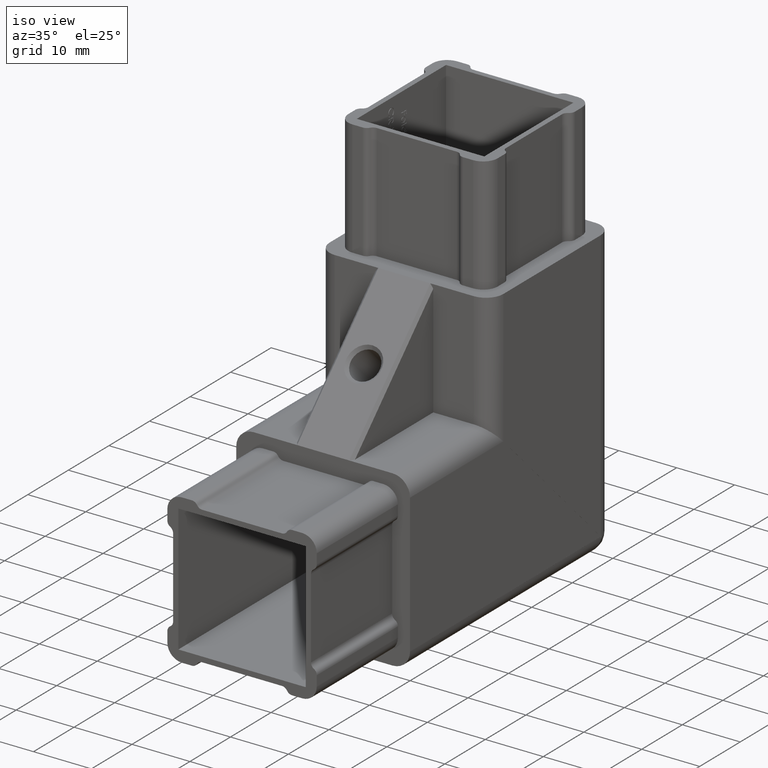
[diagram: clean part render]
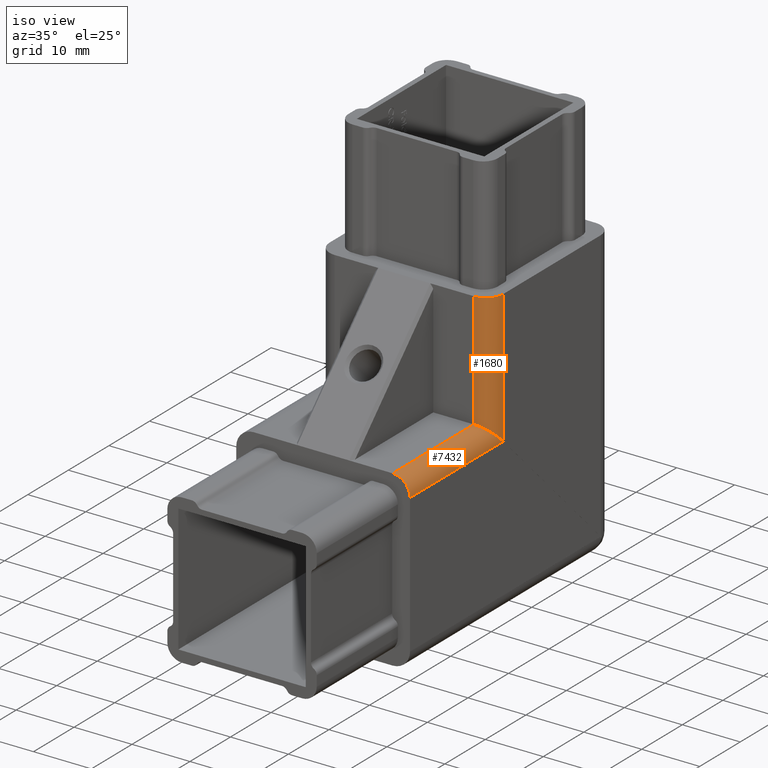
[diagram: same view with one multi-face feature highlighted, each face labeled with its STEP entity id]
A machine part, iso view. The highlighted faces form ONE feature: a constant-radius fillet chain: 2 tangent blend faces with common blend radius 3 mm. The faces share edges in the B-rep.
Their STEP definitions:
[1] entity #7432 (Cylinder):
#1920 = FACE_OUTER_BOUND ( 'NONE', #8189, .T. ) ;
#2269 = CARTESIAN_POINT ( 'NONE',  ( 27.00000000000000000, 20.00000000000000000, 30.00000000000000000 ) ) ;
#2577 = CARTESIAN_POINT ( 'NONE',  ( 27.00000000000000000, -3.673940397442059200E-015, 30.00000000000000000 ) ) ;
#2960 = ORIENTED_EDGE ( 'NONE', *, *, #11477, .F. ) ;
#3482 = VERTEX_POINT ( 'NONE', #11953 ) ;
#3545 = CARTESIAN_POINT ( 'NONE',  ( 28.64560006738315300, 20.00000000000000000, 29.99999999999999300 ) ) ;
#4037 = CARTESIAN_POINT ( 'NONE',  ( 27.00000000000000000, -3.673940397442059200E-015, 27.00000000000000000 ) ) ;
#4545 = CARTESIAN_POINT ( 'NONE',  ( 27.00000000000000000, 20.00000000000000000, 30.00000000000000000 ) ) ;
#5097 = VECTOR ( 'NONE', #14993, 1000.000000000000000 ) ;
#5337 = VERTEX_POINT ( 'NONE', #10991 ) ;
#5344 = DIRECTION ( 'NONE',  ( 0.0000000000000000000, 1.000000000000000000, 0.0000000000000000000 ) ) ;
#5791 = EDGE_CURVE ( 'NONE', #7877, #9478, #8681, .T. ) ;
#6590 = EDGE_CURVE ( 'NONE', #9478, #15626, #9050, .T. ) ;
#6801 = ORIENTED_EDGE ( 'NONE', *, *, #6852, .T. ) ;
#6852 = EDGE_CURVE ( 'NONE', #3482, #15626, #11939, .T. ) ;
#7432 = ADVANCED_FACE ( 'NONE', ( #1920 ), #12677, .T. ) ;
#7437 = VECTOR ( 'NONE', #12951, 1000.000000000000000 ) ;
#7450 = AXIS2_PLACEMENT_3D ( 'NONE', #4037, #5344, #9318 ) ;
#7492 = ORIENTED_EDGE ( 'NONE', *, *, #5791, .F. ) ;
#7705 = CARTESIAN_POINT ( 'NONE',  ( 27.00000000000000000, -3.673940397442059200E-015, 30.00000000000000000 ) ) ;
#7877 = VERTEX_POINT ( 'NONE', #8108 ) ;
#8108 = CARTESIAN_POINT ( 'NONE',  ( 30.00000000000000000, -3.306546357697853700E-015, 27.00000000000000000 ) ) ;
#8189 = EDGE_LOOP ( 'NONE', ( #2960, #9678, #6801, #13234, #7492 ) ) ;
#8224 = CARTESIAN_POINT ( 'NONE',  ( 29.99000000000002300, 22.75525523498984300, 27.24474476501015400 ) ) ;
#8306 = CARTESIAN_POINT ( 'NONE',  ( 27.00000000000000000, -3.306546357697853700E-015, 27.00000000000000000 ) ) ;
#8310 = CARTESIAN_POINT ( 'NONE',  ( 29.99999999999999600, 22.91451556301481700, 27.08169506316556500 ) ) ;
#8681 = CIRCLE ( 'NONE', #14162, 2.999999999999999100 ) ;
#9050 = LINE ( 'NONE', #7705, #7437 ) ;
#9301 =( BOUNDED_CURVE ( )  B_SPLINE_CURVE ( 3, ( #10700, #8310, #16257, #11042 ),
 .UNSPECIFIED., .F., .F. ) 
 B_SPLINE_CURVE_WITH_KNOTS ( ( 4, 4 ),
 ( 1.933014472006552100, 2.014686827587061700 ),
 .UNSPECIFIED. ) 
 CURVE ( )  GEOMETRIC_REPRESENTATION_ITEM ( )  RATIONAL_B_SPLINE_CURVE ( ( 1.000000000000000000, 0.9994442127698617300, 0.9994442127698617300, 1.000000000000000000 ) ) 
 REPRESENTATION_ITEM ( '' )  );
#9318 = DIRECTION ( 'NONE',  ( 0.0000000000000000000, 0.0000000000000000000, 1.000000000000000000 ) ) ;
#9478 = VERTEX_POINT ( 'NONE', #2577 ) ;
#9678 = ORIENTED_EDGE ( 'NONE', *, *, #16461, .T. ) ;
#10700 = CARTESIAN_POINT ( 'NONE',  ( 30.00000000000000000, 22.99621062618037800, 27.00000000000000000 ) ) ;
#10991 = CARTESIAN_POINT ( 'NONE',  ( 30.00000000000000000, 22.99621062618037800, 27.00000000000000000 ) ) ;
#11042 = CARTESIAN_POINT ( 'NONE',  ( 29.99000000000002300, 22.75525523498984300, 27.24474476501015400 ) ) ;
#11047 = CARTESIAN_POINT ( 'NONE',  ( 30.00000000000000000, 0.0000000000000000000, 27.00000000000000000 ) ) ;
#11477 = EDGE_CURVE ( 'NONE', #5337, #7877, #11973, .T. ) ;
#11939 =( BOUNDED_CURVE ( )  B_SPLINE_CURVE ( 3, ( #8224, #13473, #3545, #4545 ),
 .UNSPECIFIED., .F., .F. ) 
 B_SPLINE_CURVE_WITH_KNOTS ( ( 4, 4 ),
 ( 1.652468682375406000, 3.141592653589793100 ),
 .UNSPECIFIED. ) 
 CURVE ( )  GEOMETRIC_REPRESENTATION_ITEM ( )  RATIONAL_B_SPLINE_CURVE ( ( 1.000000000000000000, 0.8235898621780048900, 0.8235898621780048900, 1.000000000000000000 ) ) 
 REPRESENTATION_ITEM ( '' )  );
#11953 = CARTESIAN_POINT ( 'NONE',  ( 29.99000000000002300, 22.75525523498984300, 27.24474476501015400 ) ) ;
#11973 = LINE ( 'NONE', #11047, #5097 ) ;
#12677 = CYLINDRICAL_SURFACE ( 'NONE', #7450, 2.999999999999999100 ) ;
#12862 = DIRECTION ( 'NONE',  ( 0.0000000000000000000, -1.000000000000000000, -1.224646799147353200E-016 ) ) ;
#12951 = DIRECTION ( 'NONE',  ( 0.0000000000000000000, 1.000000000000000000, 0.0000000000000000000 ) ) ;
#13234 = ORIENTED_EDGE ( 'NONE', *, *, #6590, .F. ) ;
#13473 = CARTESIAN_POINT ( 'NONE',  ( 29.85574933273589300, 21.11514050116461000, 28.88485949883537500 ) ) ;
#14162 = AXIS2_PLACEMENT_3D ( 'NONE', #8306, #12862, #16618 ) ;
#14993 = DIRECTION ( 'NONE',  ( 0.0000000000000000000, -1.000000000000000000, -0.0000000000000000000 ) ) ;
#15626 = VERTEX_POINT ( 'NONE', #2269 ) ;
#16257 = CARTESIAN_POINT ( 'NONE',  ( 29.99666481301233400, 22.83415243448402900, 27.16332201872181400 ) ) ;
#16461 = EDGE_CURVE ( 'NONE', #5337, #3482, #9301, .T. ) ;
#16618 = DIRECTION ( 'NONE',  ( 0.0000000000000000000, 1.224646799147353500E-016, -1.000000000000000000 ) ) ;
[2] entity #1680 (Cylinder):
#48 = CARTESIAN_POINT ( 'NONE',  ( 29.99999999999999600, 22.91830493683444600, 27.08548443698517600 ) ) ;
#358 = VECTOR ( 'NONE', #9074, 1000.000000000000000 ) ;
#1261 = ORIENTED_EDGE ( 'NONE', *, *, #6852, .F. ) ;
#1534 = CARTESIAN_POINT ( 'NONE',  ( 27.00000000000000000, 20.00000000000000000, 30.00000000000000000 ) ) ;
#1569 = ORIENTED_EDGE ( 'NONE', *, *, #4474, .F. ) ;
#1680 = ADVANCED_FACE ( 'NONE', ( #15133 ), #5188, .T. ) ;
#1817 = EDGE_CURVE ( 'NONE', #15626, #12738, #10244, .T. ) ;
#2242 = VERTEX_POINT ( 'NONE', #14082 ) ;
#2269 = CARTESIAN_POINT ( 'NONE',  ( 27.00000000000000000, 20.00000000000000000, 30.00000000000000000 ) ) ;
#3482 = VERTEX_POINT ( 'NONE', #11953 ) ;
#3545 = CARTESIAN_POINT ( 'NONE',  ( 28.64560006738315300, 20.00000000000000000, 29.99999999999999300 ) ) ;
#3828 = CARTESIAN_POINT ( 'NONE',  ( 27.00000000000000000, 23.00000000000000000, 30.00000000000000000 ) ) ;
#3849 = CARTESIAN_POINT ( 'NONE',  ( 27.00000000000000000, 19.99999999999999600, 49.99999999999999300 ) ) ;
#3865 = CARTESIAN_POINT ( 'NONE',  ( 30.00000000000000000, 23.00000000000000400, 27.00378937381961500 ) ) ;
#4045 = CARTESIAN_POINT ( 'NONE',  ( 29.99000000000002300, 22.75525523498984300, 27.24474476501015400 ) ) ;
#4474 = EDGE_CURVE ( 'NONE', #13478, #2242, #8308, .T. ) ;
#4545 = CARTESIAN_POINT ( 'NONE',  ( 27.00000000000000000, 20.00000000000000000, 30.00000000000000000 ) ) ;
#4692 = AXIS2_PLACEMENT_3D ( 'NONE', #3828, #7806, #14148 ) ;
#5188 = CYLINDRICAL_SURFACE ( 'NONE', #4692, 2.999999999999999100 ) ;
#6852 = EDGE_CURVE ( 'NONE', #3482, #15626, #11939, .T. ) ;
#7242 = ORIENTED_EDGE ( 'NONE', *, *, #1817, .F. ) ;
#7806 = DIRECTION ( 'NONE',  ( 0.0000000000000000000, -1.734723475976807600E-016, 1.000000000000000000 ) ) ;
#8163 = CARTESIAN_POINT ( 'NONE',  ( 27.00000000000000000, 22.99999999999999600, 49.99999999999999300 ) ) ;
#8224 = CARTESIAN_POINT ( 'NONE',  ( 29.99000000000002300, 22.75525523498984300, 27.24474476501015400 ) ) ;
#8308 = LINE ( 'NONE', #9021, #358 ) ;
#8462 = VECTOR ( 'NONE', #11856, 1000.000000000000000 ) ;
#9021 = CARTESIAN_POINT ( 'NONE',  ( 30.00000000000000000, 23.00000000000000700, 3.989863994746658700E-015 ) ) ;
#9074 = DIRECTION ( 'NONE',  ( -0.0000000000000000000, 1.734723475976807600E-016, -1.000000000000000000 ) ) ;
#9230 = DIRECTION ( 'NONE',  ( -0.0000000000000000000, -2.312964634635743000E-016, 1.000000000000000000 ) ) ;
#10105 = EDGE_LOOP ( 'NONE', ( #1261, #16187, #1569, #15329, #7242 ) ) ;
#10244 = LINE ( 'NONE', #1534, #8462 ) ;
#11320 = CIRCLE ( 'NONE', #12239, 2.999999999999999100 ) ;
#11856 = DIRECTION ( 'NONE',  ( 0.0000000000000000000, -1.734723475976807600E-016, 1.000000000000000000 ) ) ;
#11939 =( BOUNDED_CURVE ( )  B_SPLINE_CURVE ( 3, ( #8224, #13473, #3545, #4545 ),
 .UNSPECIFIED., .F., .F. ) 
 B_SPLINE_CURVE_WITH_KNOTS ( ( 4, 4 ),
 ( 1.652468682375406000, 3.141592653589793100 ),
 .UNSPECIFIED. ) 
 CURVE ( )  GEOMETRIC_REPRESENTATION_ITEM ( )  RATIONAL_B_SPLINE_CURVE ( ( 1.000000000000000000, 0.8235898621780048900, 0.8235898621780048900, 1.000000000000000000 ) ) 
 REPRESENTATION_ITEM ( '' )  );
#11953 = CARTESIAN_POINT ( 'NONE',  ( 29.99000000000002300, 22.75525523498984300, 27.24474476501015400 ) ) ;
#12239 = AXIS2_PLACEMENT_3D ( 'NONE', #8163, #9230, #13128 ) ;
#12373 = EDGE_CURVE ( 'NONE', #3482, #2242, #14242, .T. ) ;
#12738 = VERTEX_POINT ( 'NONE', #3849 ) ;
#13128 = DIRECTION ( 'NONE',  ( 0.0000000000000000000, 1.000000000000000000, 0.0000000000000000000 ) ) ;
#13168 = CARTESIAN_POINT ( 'NONE',  ( 29.99666481301233400, 22.83667798127819300, 27.16584756551596800 ) ) ;
#13235 = EDGE_CURVE ( 'NONE', #12738, #13478, #11320, .T. ) ;
#13473 = CARTESIAN_POINT ( 'NONE',  ( 29.85574933273589300, 21.11514050116461000, 28.88485949883537500 ) ) ;
#13478 = VERTEX_POINT ( 'NONE', #16230 ) ;
#14082 = CARTESIAN_POINT ( 'NONE',  ( 30.00000000000000000, 23.00000000000000400, 27.00378937381961500 ) ) ;
#14148 = DIRECTION ( 'NONE',  ( 0.0000000000000000000, -1.000000000000000000, 0.0000000000000000000 ) ) ;
#14242 =( BOUNDED_CURVE ( )  B_SPLINE_CURVE ( 3, ( #4045, #13168, #48, #3865 ),
 .UNSPECIFIED., .F., .T. ) 
 B_SPLINE_CURVE_WITH_KNOTS ( ( 4, 4 ),
 ( 1.126905826002734300, 1.208578181583244100 ),
 .UNSPECIFIED. ) 
 CURVE ( )  GEOMETRIC_REPRESENTATION_ITEM ( )  RATIONAL_B_SPLINE_CURVE ( ( 1.000000000000000000, 0.9994442127698617300, 0.9994442127698617300, 1.000000000000000000 ) ) 
 REPRESENTATION_ITEM ( '' )  );
#15133 = FACE_OUTER_BOUND ( 'NONE', #10105, .T. ) ;
#15329 = ORIENTED_EDGE ( 'NONE', *, *, #13235, .F. ) ;
#15626 = VERTEX_POINT ( 'NONE', #2269 ) ;
#16187 = ORIENTED_EDGE ( 'NONE', *, *, #12373, .T. ) ;
#16230 = CARTESIAN_POINT ( 'NONE',  ( 30.00000000000000000, 22.99999999999999600, 49.99999999999999300 ) ) ;